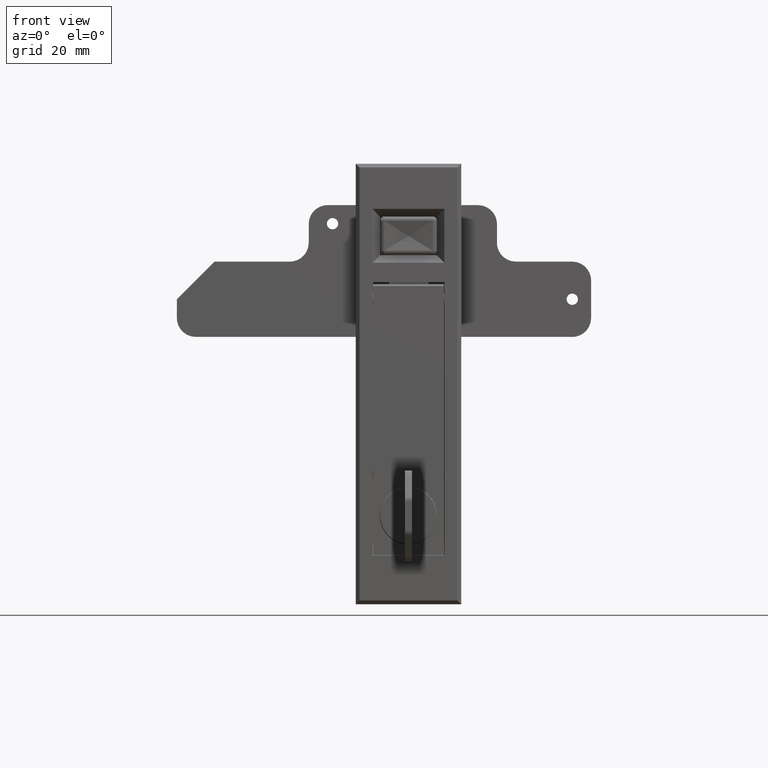
[diagram: clean part render]
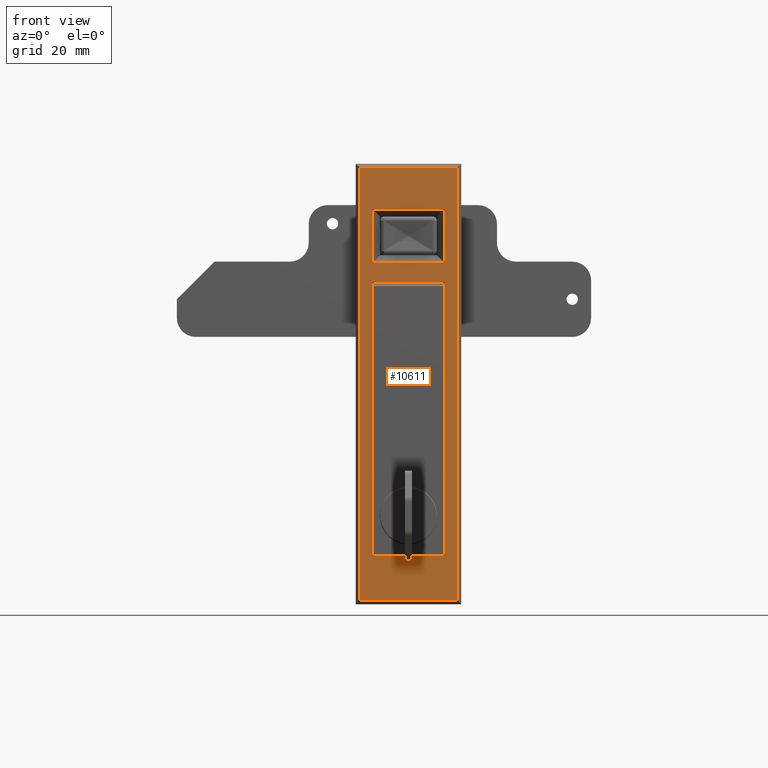
[diagram: same view with one face highlighted and labeled with its STEP entity id]
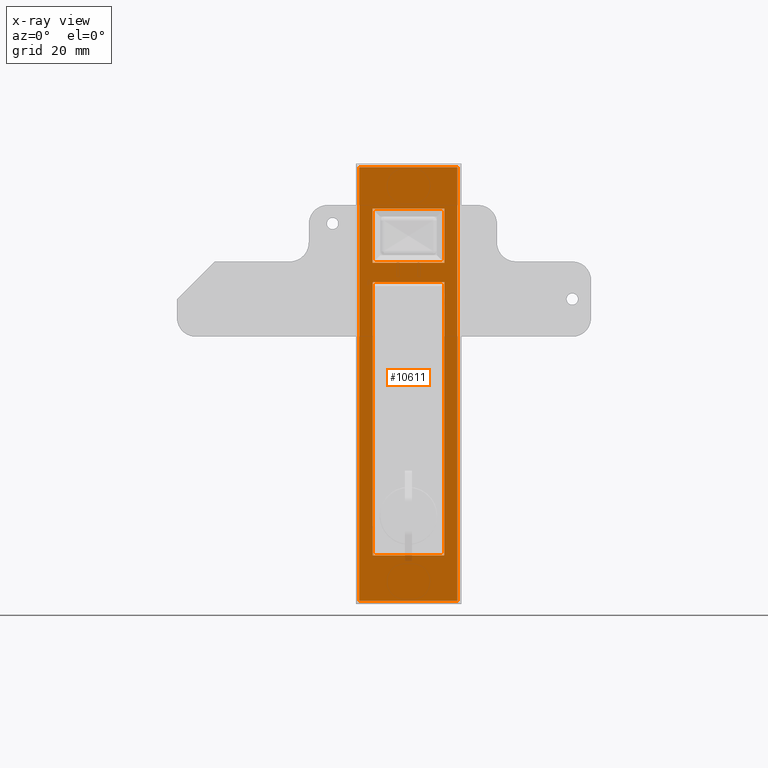
[diagram: x-ray of the same camera — body ghosted, the highlighted face saturated]
A machine part, front view. The second image highlights one B-rep face of the part: STEP entity #10611.
The next image is the same camera in x-ray: the body ghosted, the highlighted face saturated — about 0% of this face is hidden behind the body in this view.
In plain terms, the highlighted face is a freeform B-spline surface patch.
Its self-contained STEP definition (entity closure, byte-faithful):
#8611=CARTESIAN_POINT('',(-14.0,-9.549999999999999,9.700000000000001));
#8612=VERTEX_POINT('',#8611);
#8618=CARTESIAN_POINT('',(-14.0,-9.549999999999999,24.0));
#8619=VERTEX_POINT('',#8618);
#8620=CARTESIAN_POINT('',(-14.0,-9.549999999999999,24.0));
#8621=CARTESIAN_POINT('',(-14.0,-9.549999999999999,9.700000000000001));
#8622=QUASI_UNIFORM_CURVE('',1,(#8620,#8621),.UNSPECIFIED.,.F.,.U.);
#8623=EDGE_CURVE('',#8619,#8612,#8622,.T.);
#8645=CARTESIAN_POINT('',(-14.0,9.549999999999999,24.0));
#8646=VERTEX_POINT('',#8645);
#8660=CARTESIAN_POINT('',(-14.0,9.549999999999999,24.0));
#8661=CARTESIAN_POINT('',(-14.0,-9.549999999999999,24.0));
#8662=QUASI_UNIFORM_CURVE('',1,(#8660,#8661),.UNSPECIFIED.,.F.,.U.);
#8663=EDGE_CURVE('',#8646,#8619,#8662,.T.);
#8675=CARTESIAN_POINT('',(-14.0,9.549999999999999,9.700000000000001));
#8676=VERTEX_POINT('',#8675);
#8682=CARTESIAN_POINT('',(-14.0,-9.549999999999999,9.700000000000001));
#8683=CARTESIAN_POINT('',(-14.0,9.549999999999999,9.700000000000001));
#8684=QUASI_UNIFORM_CURVE('',1,(#8682,#8683),.UNSPECIFIED.,.F.,.U.);
#8685=EDGE_CURVE('',#8612,#8676,#8684,.T.);
#8716=CARTESIAN_POINT('',(-14.0,9.549999999999999,9.700000000000001));
#8717=CARTESIAN_POINT('',(-14.0,9.549999999999999,24.0));
#8718=QUASI_UNIFORM_CURVE('',1,(#8716,#8717),.UNSPECIFIED.,.F.,.U.);
#8719=EDGE_CURVE('',#8676,#8646,#8718,.T.);
#9790=CARTESIAN_POINT('',(-14.0,-9.500000000000000,-67.999799999999993));
#9791=VERTEX_POINT('',#9790);
#9792=CARTESIAN_POINT('',(-14.0,9.500000000000000,-67.999799999999993));
#9793=VERTEX_POINT('',#9792);
#9794=CARTESIAN_POINT('',(-14.0,-9.500000000000000,-67.999799999999993));
#9795=CARTESIAN_POINT('',(-14.0,9.500000000000000,-67.999799999999993));
#9796=QUASI_UNIFORM_CURVE('',1,(#9794,#9795),.UNSPECIFIED.,.F.,.U.);
#9797=EDGE_CURVE('',#9791,#9793,#9796,.T.);
#9818=CARTESIAN_POINT('',(-14.0,-9.500000000000000,4.500000000000100));
#9819=VERTEX_POINT('',#9818);
#9820=CARTESIAN_POINT('',(-14.0,-9.500000000000000,4.500000000000100));
#9821=CARTESIAN_POINT('',(-14.0,-9.500000000000000,-67.999799999999993));
#9822=QUASI_UNIFORM_CURVE('',1,(#9820,#9821),.UNSPECIFIED.,.F.,.U.);
#9823=EDGE_CURVE('',#9819,#9791,#9822,.T.);
#9855=CARTESIAN_POINT('',(-14.0,9.500000000000000,4.500000000000100));
#9856=VERTEX_POINT('',#9855);
#9857=CARTESIAN_POINT('',(-14.0,9.500000000000000,4.500000000000100));
#9858=CARTESIAN_POINT('',(-14.0,-9.500000000000000,4.500000000000100));
#9859=QUASI_UNIFORM_CURVE('',1,(#9857,#9858),.UNSPECIFIED.,.F.,.U.);
#9860=EDGE_CURVE('',#9856,#9819,#9859,.T.);
#9878=CARTESIAN_POINT('',(-14.0,9.500000000000000,-67.999799999999993));
#9879=CARTESIAN_POINT('',(-14.0,9.500000000000000,4.500000000000100));
#9880=QUASI_UNIFORM_CURVE('',1,(#9878,#9879),.UNSPECIFIED.,.F.,.U.);
#9881=EDGE_CURVE('',#9793,#9856,#9880,.T.);
#9914=CARTESIAN_POINT('',(-14.0,-13.0,-79.999799999999993));
#9915=VERTEX_POINT('',#9914);
#9930=CARTESIAN_POINT('',(-14.0,-13.0,35.0));
#9931=VERTEX_POINT('',#9930);
#9937=CARTESIAN_POINT('',(-14.0,-13.0,-79.999799999999993));
#9938=CARTESIAN_POINT('',(-14.0,-13.0,35.0));
#9939=QUASI_UNIFORM_CURVE('',1,(#9937,#9938),.UNSPECIFIED.,.F.,.U.);
#9940=EDGE_CURVE('',#9915,#9931,#9939,.T.);
#9952=CARTESIAN_POINT('',(-14.0,13.0,35.0));
#9953=VERTEX_POINT('',#9952);
#9959=CARTESIAN_POINT('',(-14.0,-13.0,35.0));
#9960=CARTESIAN_POINT('',(-14.0,13.0,35.0));
#9961=QUASI_UNIFORM_CURVE('',1,(#9959,#9960),.UNSPECIFIED.,.F.,.U.);
#9962=EDGE_CURVE('',#9931,#9953,#9961,.T.);
#9978=CARTESIAN_POINT('',(-14.0,13.0,-79.999799999999993));
#9979=VERTEX_POINT('',#9978);
#9993=CARTESIAN_POINT('',(-14.0,13.0,-79.999799999999993));
#9994=CARTESIAN_POINT('',(-14.0,-13.0,-79.999799999999993));
#9995=QUASI_UNIFORM_CURVE('',1,(#9993,#9994),.UNSPECIFIED.,.F.,.U.);
#9996=EDGE_CURVE('',#9979,#9915,#9995,.T.);
#10013=CARTESIAN_POINT('',(-14.0,13.0,35.0));
#10014=CARTESIAN_POINT('',(-14.0,13.0,-79.999799999999993));
#10015=QUASI_UNIFORM_CURVE('',1,(#10013,#10014),.UNSPECIFIED.,.F.,.U.);
#10016=EDGE_CURVE('',#9953,#9979,#10015,.T.);
#10588=CARTESIAN_POINT('',(-14.0,14.298699949606950,40.744239787108093));
#10589=CARTESIAN_POINT('',(-14.0,-14.298700646981301,40.744239787108093));
#10590=CARTESIAN_POINT('',(-14.0,14.298699949606950,-85.744042871643074));
#10591=CARTESIAN_POINT('',(-14.0,-14.298700646981301,-85.744042871643074));
#10592=B_SPLINE_SURFACE_WITH_KNOTS('',1,1,((#10588,#10590),(#10589,#10591)),.UNSPECIFIED.,.F.,.F.,.U.,(2,2),(2,2),(0.0,28.597400596588258),(0.0,126.488282658751200),.UNSPECIFIED.);
#10593=ORIENTED_EDGE('',*,*,#9996,.T.);
#10594=ORIENTED_EDGE('',*,*,#9940,.T.);
#10595=ORIENTED_EDGE('',*,*,#9962,.T.);
#10596=ORIENTED_EDGE('',*,*,#10016,.T.);
#10597=EDGE_LOOP('',(#10593,#10594,#10595,#10596));
#10598=FACE_OUTER_BOUND('',#10597,.T.);
#10599=ORIENTED_EDGE('',*,*,#8663,.T.);
#10600=ORIENTED_EDGE('',*,*,#8623,.T.);
#10601=ORIENTED_EDGE('',*,*,#8685,.T.);
#10602=ORIENTED_EDGE('',*,*,#8719,.T.);
#10603=EDGE_LOOP('',(#10599,#10600,#10601,#10602));
#10604=FACE_BOUND('',#10603,.T.);
#10605=ORIENTED_EDGE('',*,*,#9881,.T.);
#10606=ORIENTED_EDGE('',*,*,#9860,.T.);
#10607=ORIENTED_EDGE('',*,*,#9823,.T.);
#10608=ORIENTED_EDGE('',*,*,#9797,.T.);
#10609=EDGE_LOOP('',(#10605,#10606,#10607,#10608));
#10610=FACE_BOUND('',#10609,.T.);
#10611=ADVANCED_FACE('',(#10598,#10604,#10610),#10592,.F.);